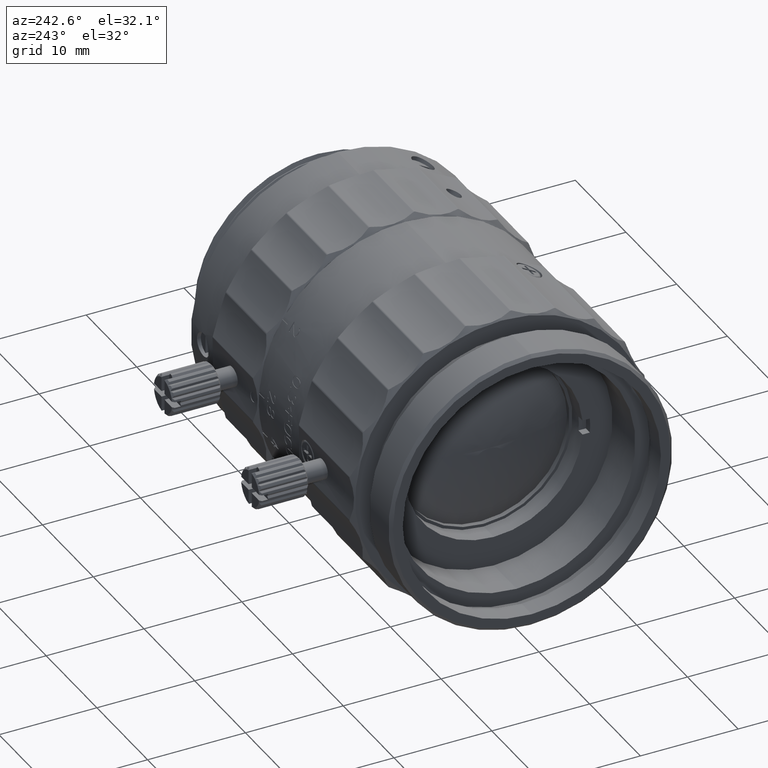
[diagram: clean part render]
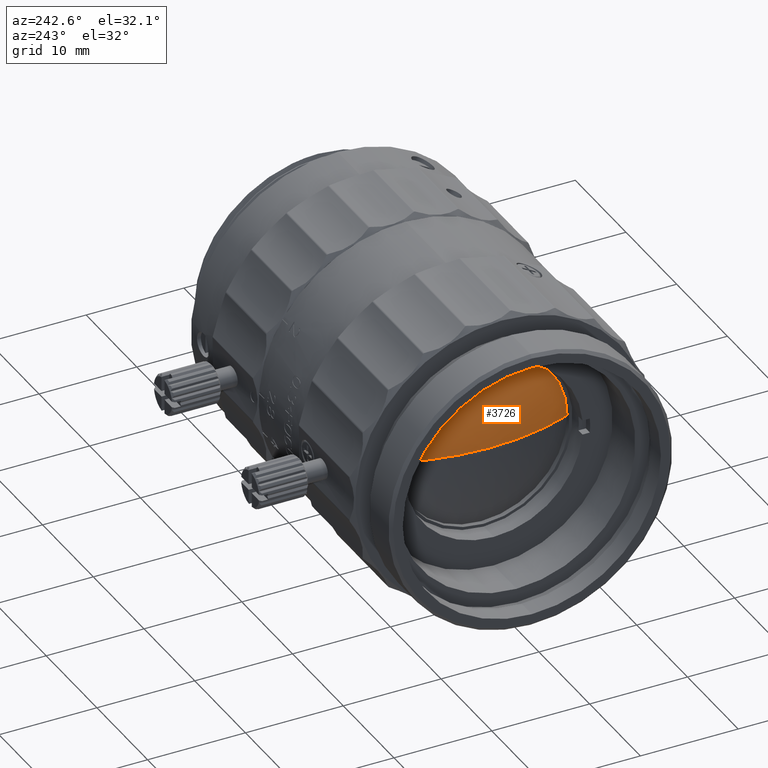
[diagram: same view with one face highlighted and labeled with its STEP entity id]
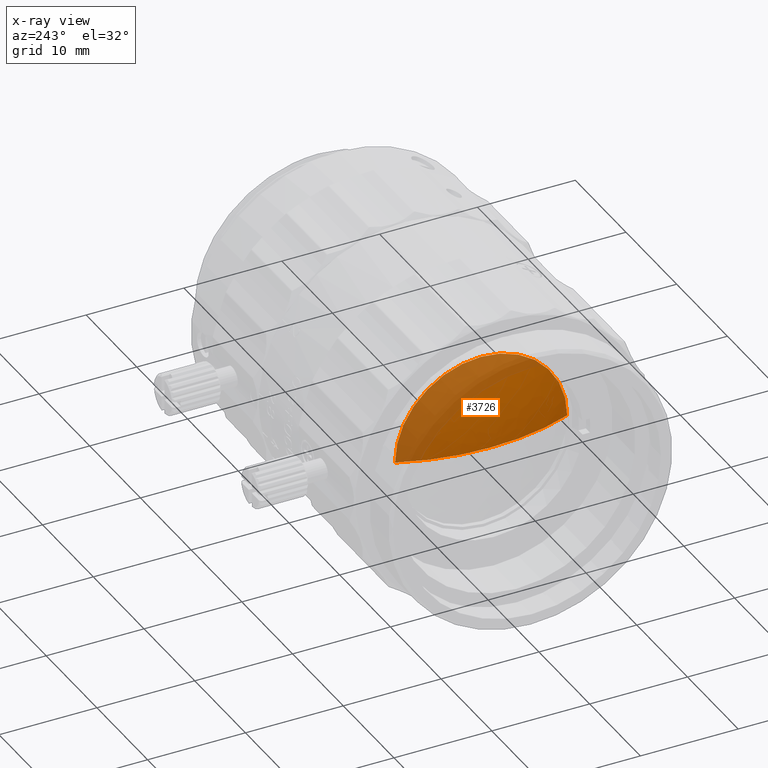
[diagram: x-ray of the same camera — body ghosted, the highlighted face saturated]
A machine part, auxiliary view. The second image highlights one B-rep face of the part: STEP entity #3726.
The next image is the same camera in x-ray: the body ghosted, the highlighted face saturated — about 42% of this face is hidden behind the body in this view.
In plain terms, the highlighted face is a freeform B-spline surface patch.
Its self-contained STEP definition (entity closure, byte-faithful):
#476 = CIRCLE ( 'NONE', #18057, 8.799999999999917222 ) ;
#1524 = CARTESIAN_POINT ( 'NONE',  ( -29.71991527606234840, 5.993851543255494185, -7.340351107012263324E-16 ) ) ;
#2930 = CARTESIAN_POINT ( 'NONE',  ( -28.58999999999980091, -8.799999999999917222, 0.000000000000000000 ) ) ;
#3595 = CARTESIAN_POINT ( 'NONE',  ( -28.58999999999980446, -8.799999999999920774, 2.155378366499322278E-15 ) ) ;
#3726 = ADVANCED_FACE ( 'NONE', ( #62336 ), #48196, .F. ) ;
#4306 = AXIS2_PLACEMENT_3D ( 'NONE', #65631, #46209, #51712 ) ;
#6123 = ORIENTED_EDGE ( 'NONE', *, *, #51938, .F. ) ;
#9098 = CARTESIAN_POINT ( 'NONE',  ( -30.29516987025499475, 3.024341261620826948, 6.048682523241651232 ) ) ;
#9490 = CARTESIAN_POINT ( 'NONE',  ( -30.29516987025499830, -2.885267858791164177E-15, -5.770535717582325987E-15 ) ) ;
#11584 = VERTEX_POINT ( 'NONE', #2930 ) ;
#11710 = CARTESIAN_POINT ( 'NONE',  ( -28.58999999999980091, -8.799999999999917222, 0.000000000000000000 ) ) ;
#12315 = EDGE_CURVE ( 'NONE', #35901, #11584, #13194, .T. ) ;
#12504 = ORIENTED_EDGE ( 'NONE', *, *, #43015, .F. ) ;
#13194 =( BOUNDED_CURVE ( )  B_SPLINE_CURVE ( 3, ( #33307, #53625, #59488, #11710 ),
 .UNSPECIFIED., .F., .T. ) 
 B_SPLINE_CURVE_WITH_KNOTS ( ( 4, 4 ),
 ( 0.000000000000000000, 0.9802743465032683901 ),
 .UNSPECIFIED. ) 
 CURVE ( )  GEOMETRIC_REPRESENTATION_ITEM ( )  RATIONAL_B_SPLINE_CURVE ( ( 1.000000000000000000, 0.9875857936971306206, 0.9873409153651633297, 0.9992653650040980162 ) ) 
 REPRESENTATION_ITEM ( '' )  );
#14194 = CARTESIAN_POINT ( 'NONE',  ( -28.58999999999981156, 8.799999999999922551, 17.59999999999983800 ) ) ;
#15348 = CARTESIAN_POINT ( 'NONE',  ( -28.58999999999981156, -8.799999999999917222, 17.59999999999984510 ) ) ;
#16452 = EDGE_LOOP ( 'NONE', ( #12504, #38002, #6123, #28099 ) ) ;
#18057 = AXIS2_PLACEMENT_3D ( 'NONE', #43490, #32901, #38395 ) ;
#21238 = CARTESIAN_POINT ( 'NONE',  ( -30.29516987025499830, -2.885267858791163782E-15, 3.533434047951336480E-31 ) ) ;
#21619 = CARTESIAN_POINT ( 'NONE',  ( -28.58999999999980446, 8.799999999999920774, -1.077689183249661139E-15 ) ) ;
#22560 = CARTESIAN_POINT ( 'NONE',  ( -28.58999999999980091, 8.799999999999917222, -1.077689183249660350E-15 ) ) ;
#28099 = ORIENTED_EDGE ( 'NONE', *, *, #70383, .F. ) ;
#28741 =( BOUNDED_CURVE ( )  B_SPLINE_CURVE ( 3, ( #31329, #38745, #1524, #73963 ),
 .UNSPECIFIED., .F., .T. ) 
 B_SPLINE_CURVE_WITH_KNOTS ( ( 4, 4 ),
 ( 0.000000000000000000, 0.9802743465032683901 ),
 .UNSPECIFIED. ) 
 CURVE ( )  GEOMETRIC_REPRESENTATION_ITEM ( )  RATIONAL_B_SPLINE_CURVE ( ( 1.000000000000000000, 0.9875857936971306206, 0.9873409153651633297, 0.9992653650040980162 ) ) 
 REPRESENTATION_ITEM ( '' )  );
#31329 = CARTESIAN_POINT ( 'NONE',  ( -30.29516987025499830, -2.885267858791163782E-15, 3.533434047951336480E-31 ) ) ;
#32608 = CARTESIAN_POINT ( 'NONE',  ( -29.71991527606234840, 5.993851543255498626, 11.98770308651099192 ) ) ;
#32901 = DIRECTION ( 'NONE',  ( 1.000000000000000000, 0.000000000000000000, 0.000000000000000000 ) ) ;
#32995 = CARTESIAN_POINT ( 'NONE',  ( -30.29516987025499830, -3.024341261620826060, 7.407499691146424361E-16 ) ) ;
#33307 = CARTESIAN_POINT ( 'NONE',  ( -30.29516987025499830, -2.885267858791163782E-15, 3.533434047951336480E-31 ) ) ;
#33375 = CARTESIAN_POINT ( 'NONE',  ( -29.71991527606235195, 5.993851543255497738, -7.340351107012269240E-16 ) ) ;
#35901 = VERTEX_POINT ( 'NONE', #56879 ) ;
#38002 = ORIENTED_EDGE ( 'NONE', *, *, #12315, .T. ) ;
#38092 = CIRCLE ( 'NONE', #4306, 8.799999999999917222 ) ;
#38395 = DIRECTION ( 'NONE',  ( 0.000000000000000000, -1.000000000000000000, 0.000000000000000000 ) ) ;
#38745 = CARTESIAN_POINT ( 'NONE',  ( -30.29516987025500185, 3.024341261620824284, -3.703749845573210208E-16 ) ) ;
#43015 = EDGE_CURVE ( 'NONE', #35901, #48730, #28741, .T. ) ;
#43490 = CARTESIAN_POINT ( 'NONE',  ( -28.58999999999980091, 0.000000000000000000, 0.000000000000000000 ) ) ;
#44731 = CARTESIAN_POINT ( 'NONE',  ( -30.29516987025499830, 3.024341261620826060, -3.703749845573212180E-16 ) ) ;
#45510 = VERTEX_POINT ( 'NONE', #68946 ) ;
#46209 = DIRECTION ( 'NONE',  ( 1.000000000000000000, 0.000000000000000000, 0.000000000000000000 ) ) ;
#48196 =( BOUNDED_SURFACE ( )  B_SPLINE_SURFACE ( 3, 3, ( 
 ( #21238, #9490, #51389, #56486 ),
 ( #44731, #9098, #75239, #32995 ),
 ( #33375, #32608, #56872, #68621 ),
 ( #21619, #14194, #15348, #3595 ) ),
 .UNSPECIFIED., .F., .F., .T. ) 
 B_SPLINE_SURFACE_WITH_KNOTS ( ( 4, 4 ),
 ( 4, 4 ),
 ( 0.000000000000000000, 0.9802743465032689452 ),
 ( 0.000000000000000000, 1.000000000000000000 ),
 .UNSPECIFIED. ) 
 GEOMETRIC_REPRESENTATION_ITEM ( )  RATIONAL_B_SPLINE_SURFACE ( (
 ( 1.000000000000000000, 0.3333333333333334259, 0.3333333333333334259, 1.000000000000000000),
 ( 0.9875857936971306206, 0.3291952645657102994, 0.3291952645657102994, 0.9875857936971306206),
 ( 0.9873409153651633297, 0.3291136384550545357, 0.3291136384550545357, 0.9873409153651633297),
 ( 0.9992653650040980162, 0.3330884550013660794, 0.3330884550013660794, 0.9992653650040980162) ) ) 
 REPRESENTATION_ITEM ( '' )  SURFACE ( )  );
#48730 = VERTEX_POINT ( 'NONE', #22560 ) ;
#51389 = CARTESIAN_POINT ( 'NONE',  ( -30.29516987025499830, 2.885267858791161810E-15, -5.770535717582325987E-15 ) ) ;
#51712 = DIRECTION ( 'NONE',  ( 0.000000000000000000, -1.000000000000000000, 0.000000000000000000 ) ) ;
#51938 = EDGE_CURVE ( 'NONE', #45510, #11584, #476, .T. ) ;
#53625 = CARTESIAN_POINT ( 'NONE',  ( -30.29516987025500185, -3.024341261620824284, 0.000000000000000000 ) ) ;
#56486 = CARTESIAN_POINT ( 'NONE',  ( -30.29516987025499830, 2.885267858791163782E-15, -7.066868095902672961E-31 ) ) ;
#56872 = CARTESIAN_POINT ( 'NONE',  ( -29.71991527606234840, -5.993851543255495073, 11.98770308651099192 ) ) ;
#56879 = CARTESIAN_POINT ( 'NONE',  ( -30.29516987025499830, -2.885267858791163782E-15, 3.533434047951336480E-31 ) ) ;
#59488 = CARTESIAN_POINT ( 'NONE',  ( -29.71991527606234840, -5.993851543255494185, 0.000000000000000000 ) ) ;
#62336 = FACE_OUTER_BOUND ( 'NONE', #16452, .T. ) ;
#65631 = CARTESIAN_POINT ( 'NONE',  ( -28.58999999999980091, 0.000000000000000000, 0.000000000000000000 ) ) ;
#68621 = CARTESIAN_POINT ( 'NONE',  ( -29.71991527606235195, -5.993851543255497738, 1.468070221402453848E-15 ) ) ;
#68946 = CARTESIAN_POINT ( 'NONE',  ( -28.58999999999980091, 1.077689183249665675E-15, 8.799999999999917222 ) ) ;
#70383 = EDGE_CURVE ( 'NONE', #48730, #45510, #38092, .T. ) ;
#73963 = CARTESIAN_POINT ( 'NONE',  ( -28.58999999999980091, 8.799999999999917222, -1.077689183249660350E-15 ) ) ;
#75239 = CARTESIAN_POINT ( 'NONE',  ( -30.29516987025499475, -3.024341261620824728, 6.048682523241651232 ) ) ;